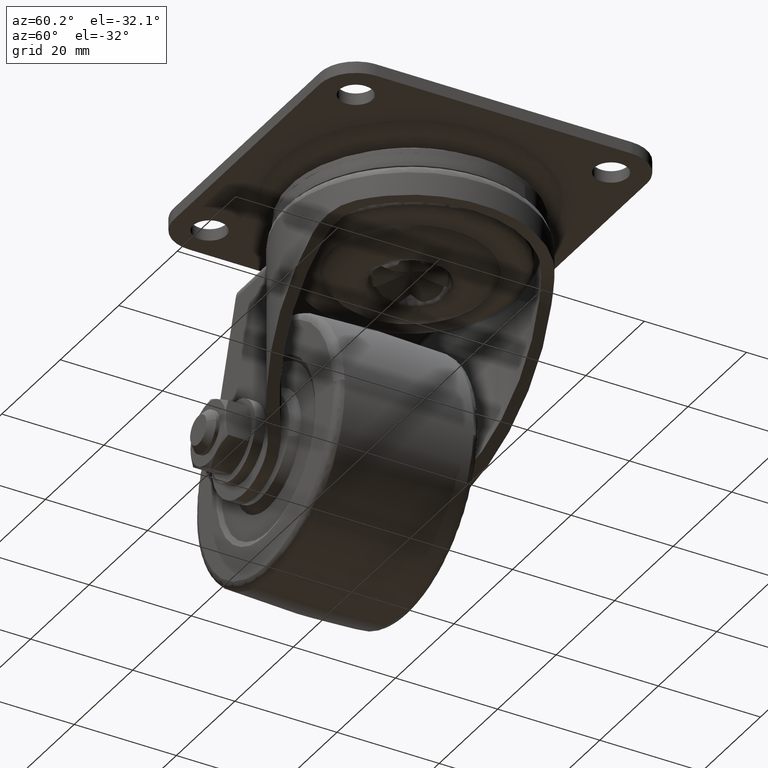
[diagram: clean part render]
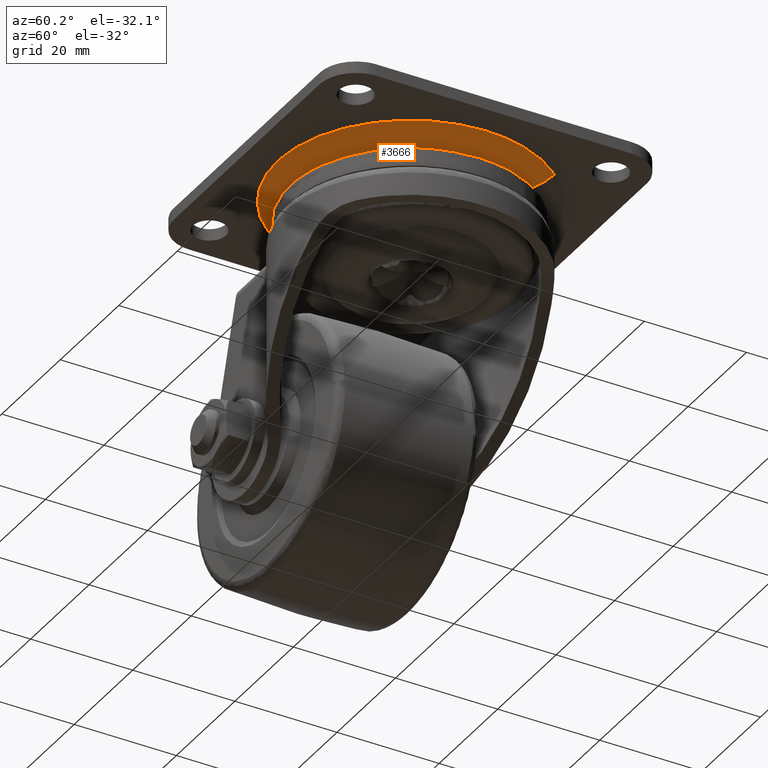
[diagram: same view with one face highlighted and labeled with its STEP entity id]
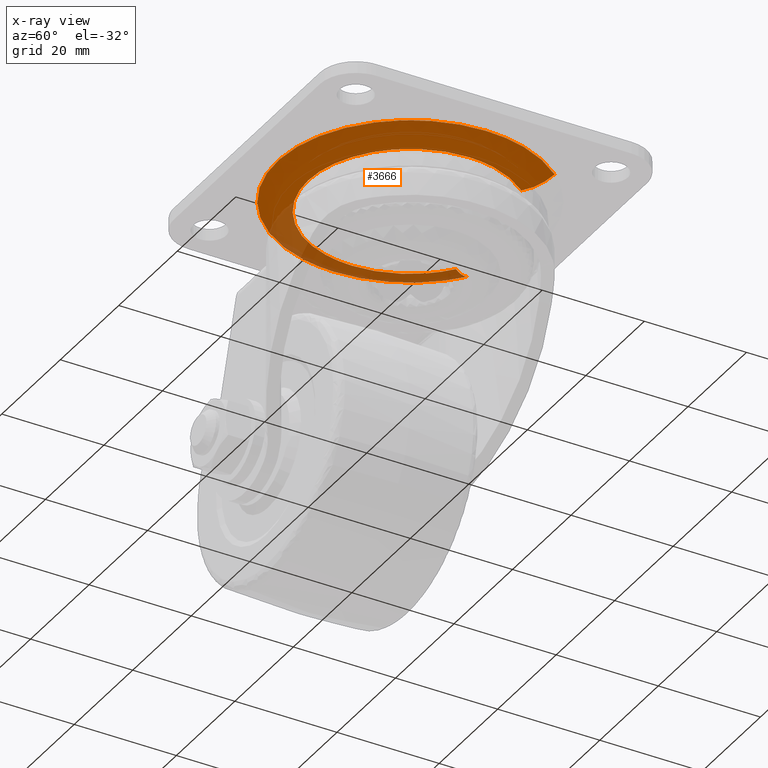
[diagram: x-ray of the same camera — body ghosted, the highlighted face saturated]
A machine part, auxiliary view. The second image highlights one B-rep face of the part: STEP entity #3666.
The next image is the same camera in x-ray: the body ghosted, the highlighted face saturated — about 21% of this face is hidden behind the body in this view.
In plain terms, the highlighted face is a freeform B-spline surface patch.
Its self-contained STEP definition (entity closure, byte-faithful):
#3505=CARTESIAN_POINT('',(19.894682999271513,17.123404836070485,-2.107057123517721));
#3506=CARTESIAN_POINT('',(20.384747016065244,16.554028105402789,-2.107057123517720));
#3507=CARTESIAN_POINT('',(20.841444957380006,15.957555480397497,-2.107057123517722));
#3508=CARTESIAN_POINT('',(36.799000437777501,-4.883889476982509,-2.107057123517722));
#3509=CARTESIAN_POINT('',(15.957555480397497,-20.841444957380006,-2.107057123517722));
#3510=CARTESIAN_POINT('',(-4.883889476982509,-36.799000437777501,-2.107057123517722));
#3511=CARTESIAN_POINT('',(-20.841444957379995,-15.957555480397506,-2.107057123517722));
#3512=CARTESIAN_POINT('',(-36.799000437777487,4.883889476982524,-2.107057123517722));
#3513=CARTESIAN_POINT('',(-15.957555480397506,20.841444957379995,-2.107057123517722));
#3514=CARTESIAN_POINT('',(17.712882890130896,15.245523869504407,-4.411218481361302));
#3515=CARTESIAN_POINT('',(18.149202812315757,14.738589260340156,-4.411218481361301));
#3516=CARTESIAN_POINT('',(18.555815833039354,14.207530295777888,-4.411218481361302));
#3517=CARTESIAN_POINT('',(32.763346128817233,-4.348285537261465,-4.411218481361304));
#3518=CARTESIAN_POINT('',(14.207530295777888,-18.555815833039354,-4.411218481361302));
#3519=CARTESIAN_POINT('',(-4.348285537261464,-32.763346128817233,-4.411218481361304));
#3520=CARTESIAN_POINT('',(-18.555815833039354,-14.207530295777900,-4.411218481361302));
#3521=CARTESIAN_POINT('',(-32.763346128817233,4.348285537261477,-4.411218481361304));
#3522=CARTESIAN_POINT('',(-14.207530295777900,18.555815833039340,-4.411218481361302));
#3523=CARTESIAN_POINT('',(14.919619437709132,12.841354830401393,-4.295034486766311));
#3524=CARTESIAN_POINT('',(15.287133141292424,12.414362144035898,-4.295034486766311));
#3525=CARTESIAN_POINT('',(15.629624624200236,11.967049433880314,-4.295034486766311));
#3526=CARTESIAN_POINT('',(27.596674058080545,-3.662575190319925,-4.295034486766310));
#3527=CARTESIAN_POINT('',(11.967049433880314,-15.629624624200236,-4.295034486766311));
#3528=CARTESIAN_POINT('',(-3.662575190319923,-27.596674058080545,-4.295034486766310));
#3529=CARTESIAN_POINT('',(-15.629624624200236,-11.967049433880325,-4.295034486766311));
#3530=CARTESIAN_POINT('',(-27.596674058080545,3.662575190319934,-4.295034486766310));
#3531=CARTESIAN_POINT('',(-11.967049433880325,15.629624624200227,-4.295034486766311));
#3539=(BOUNDED_SURFACE()B_SPLINE_SURFACE(2,2,((#3505,#3514,#3523),(#3506,#3515,#3524),(#3507,#3516,#3525),(#3508,#3517,#3526),(#3509,#3518,#3527),(#3510,#3519,#3528),(#3511,#3520,#3529),(#3512,#3521,#3530),(#3513,#3522,#3531)),.UNSPECIFIED.,.F.,.F.,.U.)B_SPLINE_SURFACE_WITH_KNOTS((3,2,2,2,3),(3,3),(0.0,1.739628276132794,45.230376655462372,88.721125034791953,132.211873414121500),(0.0,7.139569427934040),.UNSPECIFIED.)GEOMETRIC_REPRESENTATION_ITEM()RATIONAL_B_SPLINE_SURFACE(((0.915134979798949,0.858426404325461,0.914710023077696),(0.925225709220055,0.867891837037786,0.924796066716503),(0.936193892463860,0.878180350002322,0.935759156719100),(0.661989049866625,0.620967280591418,0.661681645273481),(0.936193892463860,0.878180350002322,0.935759156719100),(0.661989049866625,0.620967280591418,0.661681645273481),(0.936193892463860,0.878180350002322,0.935759156719100),(0.661989049866625,0.620967280591418,0.661681645273481),(0.936193892463860,0.878180350002322,0.935759156719100)))REPRESENTATION_ITEM('')SURFACE());
#3540=CARTESIAN_POINT('',(15.158437016161409,13.046907190911520,-4.300000000000097));
#3541=VERTEX_POINT('',#3540);
#3542=CARTESIAN_POINT('',(20.0,0.0,-4.300000000000096));
#3543=VERTEX_POINT('',#3542);
#3544=CARTESIAN_POINT('',(15.158437016161415,13.046907190911522,-4.300000000000097));
#3545=CARTESIAN_POINT('',(19.999999999999996,7.421778837753549,-4.300000000000096));
#3546=CARTESIAN_POINT('',(20.0,0.0,-4.300000000000096));
#3554=(BOUNDED_CURVE()B_SPLINE_CURVE(2,(#3544,#3545,#3546),.UNSPECIFIED.,.F.,.U.)B_SPLINE_CURVE_WITH_KNOTS((3,3),(0.386280135074965,0.500000000000000),.UNSPECIFIED.)CURVE()GEOMETRIC_REPRESENTATION_ITEM()RATIONAL_B_SPLINE_CURVE((0.854745971619480,0.866768890876302,1.0))REPRESENTATION_ITEM(''));
#3555=EDGE_CURVE('',#3541,#3543,#3554,.T.);
#3556=ORIENTED_EDGE('',*,*,#3555,.F.);
#3557=CARTESIAN_POINT('',(19.705968120511720,16.960979347694160,-2.300000000006841));
#3558=VERTEX_POINT('',#3557);
#3559=CARTESIAN_POINT('',(19.705968120511717,16.960979347694160,-2.300000000006842));
#3560=CARTESIAN_POINT('',(17.684843185428768,15.221391722593276,-4.299999999646905));
#3561=CARTESIAN_POINT('',(15.158437016161406,13.046907190911528,-4.300000000000098));
#3569=(BOUNDED_CURVE()B_SPLINE_CURVE(2,(#3559,#3560,#3561),.UNSPECIFIED.,.F.,.U.)B_SPLINE_CURVE_WITH_KNOTS((3,3),(-1.509113759837126,-0.495080874591204),.UNSPECIFIED.)CURVE()GEOMETRIC_REPRESENTATION_ITEM()RATIONAL_B_SPLINE_CURVE((0.910217339649589,0.863324705124471,0.909830986982010))REPRESENTATION_ITEM(''));
#3570=EDGE_CURVE('',#3558,#3541,#3569,.T.);
#3571=ORIENTED_EDGE('',*,*,#3570,.F.);
#3572=CARTESIAN_POINT('',(26.0,0.0,-2.300000000000095));
#3573=VERTEX_POINT('',#3572);
#3574=CARTESIAN_POINT('',(19.705968120511724,16.960979347694160,-2.300000000006842));
#3575=CARTESIAN_POINT('',(26.000000000000007,9.648312489026063,-2.300000000000095));
#3576=CARTESIAN_POINT('',(26.0,0.0,-2.300000000000095));
#3584=(BOUNDED_CURVE()B_SPLINE_CURVE(2,(#3574,#3575,#3576),.UNSPECIFIED.,.F.,.U.)B_SPLINE_CURVE_WITH_KNOTS((3,3),(0.386280135075512,0.500000000000000),.UNSPECIFIED.)CURVE()GEOMETRIC_REPRESENTATION_ITEM()RATIONAL_B_SPLINE_CURVE((0.854745971619596,0.866768890876942,1.0))REPRESENTATION_ITEM(''));
#3585=EDGE_CURVE('',#3558,#3573,#3584,.T.);
#3586=ORIENTED_EDGE('',*,*,#3585,.T.);
#3587=CARTESIAN_POINT('',(-26.0,0.0,-2.300000000000095));
#3588=VERTEX_POINT('',#3587);
#3589=CARTESIAN_POINT('',(26.0,0.0,-2.300000000000095));
#3590=CARTESIAN_POINT('',(26.000000000000007,-26.000000000000007,-2.300000000000094));
#3591=CARTESIAN_POINT('',(0.0,-26.0,-2.300000000000095));
#3592=CARTESIAN_POINT('',(-26.000000000000007,-26.000000000000007,-2.300000000000094));
#3593=CARTESIAN_POINT('',(-26.0,0.0,-2.300000000000095));
#3601=(BOUNDED_CURVE()B_SPLINE_CURVE(2,(#3589,#3590,#3591,#3592,#3593),.UNSPECIFIED.,.F.,.U.)B_SPLINE_CURVE_WITH_KNOTS((3,2,3),(0.500000000000000,0.750000000000000,1.0),.UNSPECIFIED.)CURVE()GEOMETRIC_REPRESENTATION_ITEM()RATIONAL_B_SPLINE_CURVE((1.0,0.707106781186547,1.0,0.707106781186547,1.0))REPRESENTATION_ITEM(''));
#3602=EDGE_CURVE('',#3573,#3588,#3601,.T.);
#3603=ORIENTED_EDGE('',*,*,#3602,.T.);
#3604=CARTESIAN_POINT('',(-15.806187739958229,20.643750364663688,-2.300000000153583));
#3605=VERTEX_POINT('',#3604);
#3606=CARTESIAN_POINT('',(-26.0,0.0,-2.300000000000095));
#3607=CARTESIAN_POINT('',(-25.999999999999996,12.838709734112415,-2.300000000000095));
#3608=CARTESIAN_POINT('',(-15.806187739958229,20.643750364663688,-2.300000000153583));
#3616=(BOUNDED_CURVE()B_SPLINE_CURVE(2,(#3606,#3607,#3608),.UNSPECIFIED.,.F.,.U.)B_SPLINE_CURVE_WITH_KNOTS((3,3),(0.0,0.144938183777107),.UNSPECIFIED.)CURVE()GEOMETRIC_REPRESENTATION_ITEM()RATIONAL_B_SPLINE_CURVE((1.0,0.830194355298190,0.857279284501828))REPRESENTATION_ITEM(''));
#3617=EDGE_CURVE('',#3588,#3605,#3616,.T.);
#3618=ORIENTED_EDGE('',*,*,#3617,.T.);
#3619=CARTESIAN_POINT('',(-12.158605953955670,15.879807973025519,-4.300000000000095));
#3620=VERTEX_POINT('',#3619);
#3621=CARTESIAN_POINT('',(-15.806187739958228,20.643750364663681,-2.300000000153583));
#3622=CARTESIAN_POINT('',(-14.185040279418397,18.526442634956304,-4.299999999937909));
#3623=CARTESIAN_POINT('',(-12.158605953955668,15.879807973025514,-4.300000000000095));
#3631=(BOUNDED_CURVE()B_SPLINE_CURVE(2,(#3621,#3622,#3623),.UNSPECIFIED.,.F.,.U.)B_SPLINE_CURVE_WITH_KNOTS((3,3),(-1.509113759758684,-0.495080874451262),.UNSPECIFIED.)CURVE()GEOMETRIC_REPRESENTATION_ITEM()RATIONAL_B_SPLINE_CURVE((0.931163108087892,0.883191388142504,0.930767864758212))REPRESENTATION_ITEM(''));
#3632=EDGE_CURVE('',#3605,#3620,#3631,.T.);
#3633=ORIENTED_EDGE('',*,*,#3632,.T.);
#3634=CARTESIAN_POINT('',(-20.0,0.0,-4.300000000000096));
#3635=VERTEX_POINT('',#3634);
#3636=CARTESIAN_POINT('',(-20.0,0.0,-4.300000000000096));
#3637=CARTESIAN_POINT('',(-19.999999999999993,9.875930564718718,-4.300000000000095));
#3638=CARTESIAN_POINT('',(-12.158605953955671,15.879807973025514,-4.300000000000095));
#3646=(BOUNDED_CURVE()B_SPLINE_CURVE(2,(#3636,#3637,#3638),.UNSPECIFIED.,.F.,.U.)B_SPLINE_CURVE_WITH_KNOTS((3,3),(0.0,0.144938183777312),.UNSPECIFIED.)CURVE()GEOMETRIC_REPRESENTATION_ITEM()RATIONAL_B_SPLINE_CURVE((1.0,0.830194355297949,0.857279284501905))REPRESENTATION_ITEM(''));
#3647=EDGE_CURVE('',#3635,#3620,#3646,.T.);
#3648=ORIENTED_EDGE('',*,*,#3647,.F.);
#3649=CARTESIAN_POINT('',(20.0,0.0,-4.300000000000096));
#3650=CARTESIAN_POINT('',(19.999999999999996,-19.999999999999996,-4.300000000000096));
#3651=CARTESIAN_POINT('',(0.0,-20.0,-4.300000000000096));
#3652=CARTESIAN_POINT('',(-19.999999999999996,-19.999999999999996,-4.300000000000096));
#3653=CARTESIAN_POINT('',(-20.0,0.0,-4.300000000000096));
#3661=(BOUNDED_CURVE()B_SPLINE_CURVE(2,(#3649,#3650,#3651,#3652,#3653),.UNSPECIFIED.,.F.,.U.)B_SPLINE_CURVE_WITH_KNOTS((3,2,3),(0.500000000000000,0.750000000000000,1.0),.UNSPECIFIED.)CURVE()GEOMETRIC_REPRESENTATION_ITEM()RATIONAL_B_SPLINE_CURVE((1.0,0.707106781186548,1.0,0.707106781186548,1.0))REPRESENTATION_ITEM(''));
#3662=EDGE_CURVE('',#3543,#3635,#3661,.T.);
#3663=ORIENTED_EDGE('',*,*,#3662,.F.);
#3664=EDGE_LOOP('',(#3556,#3571,#3586,#3603,#3618,#3633,#3648,#3663));
#3665=FACE_OUTER_BOUND('',#3664,.T.);
#3666=ADVANCED_FACE('',(#3665),#3539,.T.);